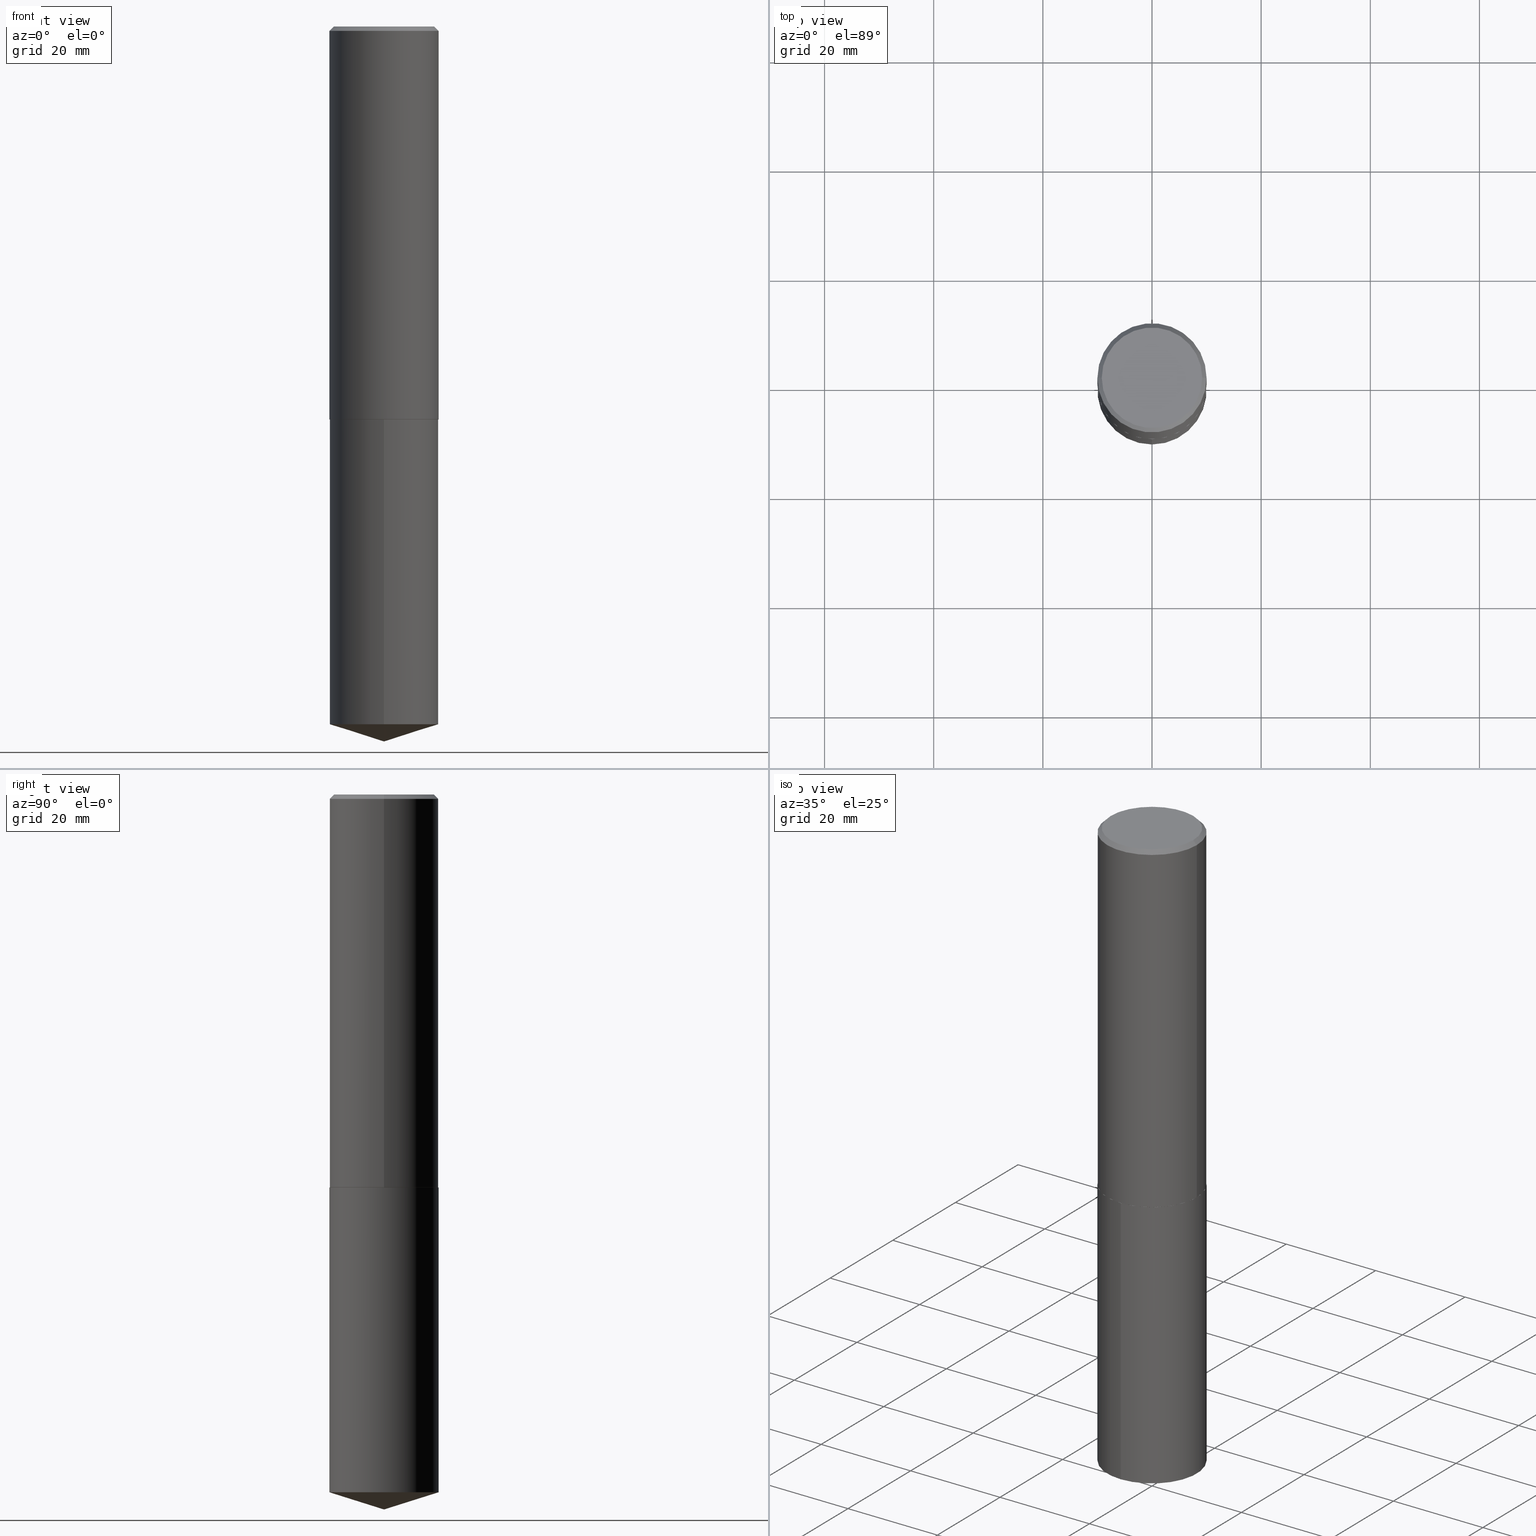
[diagram: canonical four-view strip — front | top / right | iso, engineering-drawing reading convention]
A machine part, canonical four-view strip (front | top / right | iso — engineering-drawing reading convention). The complete STEP part file that produces these views, byte-faithful:
ISO-10303-21;
HEADER;
FILE_DESCRIPTION (( 'STEP AP203' ),
    '1' );
FILE_NAME ('63212.STEP',
    '2024-04-23T10:18:52',
    ( '' ),
    ( '' ),
    'SwSTEP 2.0',
    'SolidWorks 2023',
    '' );
FILE_SCHEMA (( 'CONFIG_CONTROL_DESIGN' ));
ENDSEC;

DATA;
#1 =( LENGTH_UNIT ( ) NAMED_UNIT ( * ) SI_UNIT ( $, .METRE. ) );
#2 = AXIS2_PLACEMENT_3D ( 'NONE', #327, #82, #181 ) ;
#3 = DIRECTION ( 'NONE',  ( -2.446283281185317163E-29, 3.490314964285848959E-15, 1.000000000000000000 ) ) ;
#4 = ADVANCED_FACE ( 'NONE', ( #341 ), #131, .F. ) ;
#5 = LINE ( 'NONE', #126, #113 ) ;
#6 = EDGE_CURVE ( 'NONE', #187, #47, #161, .T. ) ;
#7 = DIRECTION ( 'NONE',  ( 1.000000000000000000, -6.982962677686265922E-15, 4.876176775795935793E-29 ) ) ;
#8 = EDGE_LOOP ( 'NONE', ( #262, #146, #225, #130 ) ) ;
#9 = EDGE_CURVE ( 'NONE', #79, #290, #387, .T. ) ;
#10 = EDGE_CURVE ( 'NONE', #165, #47, #164, .T. ) ;
#11 = ORIENTED_EDGE ( 'NONE', *, *, #57, .T. ) ;
#12 = FACE_OUTER_BOUND ( 'NONE', #66, .T. ) ;
#13 = AXIS2_PLACEMENT_3D ( 'NONE', #336, #166, #94 ) ;
#14 = PERSON_AND_ORGANIZATION ( #109, #363 ) ;
#15 = DIRECTION ( 'NONE',  ( 1.000000000000000000, -6.982962677686265922E-15, 0.000000000000000000 ) ) ;
#16 = COORDINATED_UNIVERSAL_TIME_OFFSET ( 5, 0, .BEHIND. ) ;
#17 = ORIENTED_EDGE ( 'NONE', *, *, #291, .T. ) ;
#18 = DIRECTION ( 'NONE',  ( -2.446283281185317163E-29, 3.490314964285848959E-15, 1.000000000000000000 ) ) ;
#19 = PERSON_AND_ORGANIZATION ( #109, #363 ) ;
#20 = ORIENTED_EDGE ( 'NONE', *, *, #283, .F. ) ;
#21 = LINE ( 'NONE', #230, #51 ) ;
#22 = APPROVAL_PERSON_ORGANIZATION ( #31, #98, #54 ) ;
#23 = ORIENTED_EDGE ( 'NONE', *, *, #173, .T. ) ;
#24 = LINE ( 'NONE', #342, #77 ) ;
#25 = ORIENTED_EDGE ( 'NONE', *, *, #96, .T. ) ;
#26 = CARTESIAN_POINT ( 'NONE',  ( -1.178467787315321927E-46, 1.682539673960461744E-32, 4.818985154644842843E-18 ) ) ;
#27 = PERSON_AND_ORGANIZATION_ROLE ( 'creator' ) ;
#28 = CARTESIAN_POINT ( 'NONE',  ( -2.749192406204959760E-15, -0.3937000000000174804, -5.033366866818345997 ) ) ;
#29 = AXIS2_PLACEMENT_3D ( 'NONE', #360, #206, #322 ) ;
#30 = APPLICATION_PROTOCOL_DEFINITION ( 'international standard', 'config_control_design', 1994, #226 ) ;
#31 = PERSON_AND_ORGANIZATION ( #109, #363 ) ;
#32 =( CONVERSION_BASED_UNIT ( 'INCH', #243 ) LENGTH_UNIT ( ) NAMED_UNIT ( #329 ) );
#33 = CARTESIAN_POINT ( 'NONE',  ( 7.642090019328588649E-31, -1.091087918388488171E-16, -0.03125000000000014572 ) ) ;
#34 = ADVANCED_FACE ( 'NONE', ( #250 ), #41, .F. ) ;
#35 = AXIS2_PLACEMENT_3D ( 'NONE', #274, #305, #215 ) ;
#36 = DIRECTION ( 'NONE',  ( 2.438088387897960049E-29, -3.491481338843145188E-15, -1.000000000000000000 ) ) ;
#37 = ORIENTED_EDGE ( 'NONE', *, *, #384, .T. ) ;
#38 = ADVANCED_FACE ( 'NONE', ( #12 ), #44, .T. ) ;
#39 = DIRECTION ( 'NONE',  ( -2.445468806185136597E-29, 3.491481338843145583E-15, 1.000000000000000000 ) ) ;
#40 = CARTESIAN_POINT ( 'NONE',  ( 0.3937000000000000499, -2.858301198043932317E-15, -0.03125000000000014572 ) ) ;
#41 = PLANE ( 'NONE',  #259 ) ;
#42 = CC_DESIGN_PERSON_AND_ORGANIZATION_ASSIGNMENT ( #14, #212, ( #185 ) ) ;
#43 = CIRCLE ( 'NONE', #213, 0.3937000000000000499 ) ;
#44 = CONICAL_SURFACE ( 'NONE', #269, 0.3937000000000004385, 0.7853981633969702170 ) ;
#45 = DIRECTION ( 'NONE',  ( 0.7071067811865454633, -7.319954787623248157E-15, -0.7071067811865495711 ) ) ;
#46 = ADVANCED_FACE ( 'NONE', ( #275 ), #134, .T. ) ;
#47 = VERTEX_POINT ( 'NONE', #40 ) ;
#48 = CARTESIAN_POINT ( 'NONE',  ( 0.3624500000000000499, -2.648337176426896411E-15, 4.818985154662952747E-18 ) ) ;
#49 = EDGE_LOOP ( 'NONE', ( #71, #370, #193 ) ) ;
#50 = DIRECTION ( 'NONE',  ( -2.446283281185317163E-29, 3.490314964285848959E-15, 1.000000000000000000 ) ) ;
#51 = VECTOR ( 'NONE', #197, 39.37007874015748143 ) ;
#52 = DIRECTION ( 'NONE',  ( -2.445468806185136597E-29, 3.491481338843145583E-15, 1.000000000000000000 ) ) ;
#53 = CARTESIAN_POINT ( 'NONE',  ( 6.930947690489914621E-29, -9.895556410549243682E-15, -2.834200000000000053 ) ) ;
#54 = APPROVAL_ROLE ( '' ) ;
#55 = CARTESIAN_POINT ( 'NONE',  ( 6.932170424893007423E-29, -9.897302151218665974E-15, -2.834700000000000220 ) ) ;
#56 = FACE_OUTER_BOUND ( 'NONE', #317, .T. ) ;
#57 = EDGE_CURVE ( 'NONE', #47, #187, #85, .T. ) ;
#58 = LINE ( 'NONE', #205, #331 ) ;
#59 = AXIS2_PLACEMENT_3D ( 'NONE', #55, #325, #388 ) ;
#60 = CC_DESIGN_SECURITY_CLASSIFICATION ( #90, ( #238 ) ) ;
#61 = DIRECTION ( 'NONE',  ( -2.445468806185136597E-29, 3.491481338843145583E-15, 1.000000000000000000 ) ) ;
#62 = EDGE_LOOP ( 'NONE', ( #220, #320, #249, #338 ) ) ;
#63 = LOCAL_TIME ( 6, 18, 52.00000000000000000, #344 ) ;
#64 = ORIENTED_EDGE ( 'NONE', *, *, #10, .T. ) ;
#65 = PRODUCT_RELATED_PRODUCT_CATEGORY ( 'detail', '', ( #328 ) ) ;
#66 = EDGE_LOOP ( 'NONE', ( #365, #140, #20, #69 ) ) ;
#67 = ORIENTED_EDGE ( 'NONE', *, *, #326, .F. ) ;
#68 =( GEOMETRIC_REPRESENTATION_CONTEXT ( 3 ) GLOBAL_UNCERTAINTY_ASSIGNED_CONTEXT ( ( #303 ) ) GLOBAL_UNIT_ASSIGNED_CONTEXT ( ( #32, #160, #295 ) ) REPRESENTATION_CONTEXT ( 'NONE', 'WORKASPACE' ) );
#69 = ORIENTED_EDGE ( 'NONE', *, *, #123, .F. ) ;
#70 = DIRECTION ( 'NONE',  ( -2.445468806185136597E-29, 3.491481338843145583E-15, 1.000000000000000000 ) ) ;
#71 = ORIENTED_EDGE ( 'NONE', *, *, #208, .F. ) ;
#72 = DIRECTION ( 'NONE',  ( -6.982962677686265133E-15, -1.000000000000000000, 4.163344669033674845E-15 ) ) ;
#73 = CARTESIAN_POINT ( 'NONE',  ( 0.3932000000000007156, -1.264300307608491092E-14, -2.834700000000000220 ) ) ;
#74 = VECTOR ( 'NONE', #3, 39.37007874015748143 ) ;
#75 = AXIS2_PLACEMENT_3D ( 'NONE', #270, #235, #268 ) ;
#76 = VERTEX_POINT ( 'NONE', #139 ) ;
#77 = VECTOR ( 'NONE', #234, 39.37007874015748143 ) ;
#78 = DIRECTION ( 'NONE',  ( -0.7071067811862092878, 7.493145998869131426E-15, 0.7071067811868855246 ) ) ;
#79 = VERTEX_POINT ( 'NONE', #373 ) ;
#80 = ADVANCED_FACE ( 'NONE', ( #101 ), #183, .T. ) ;
#81 = DIRECTION ( 'NONE',  ( -6.982962677686265133E-15, -1.000000000000000000, 4.163344669033674845E-15 ) ) ;
#82 = DIRECTION ( 'NONE',  ( -2.445468806185136597E-29, 3.491481338843145583E-15, 1.000000000000000000 ) ) ;
#83 = AXIS2_PLACEMENT_3D ( 'NONE', #33, #157, #293 ) ;
#84 = DIRECTION ( 'NONE',  ( 6.776566513254263659E-15, 0.9537169507482298192, 0.3007057995042640153 ) ) ;
#85 = CIRCLE ( 'NONE', #177, 0.3937000000000000499 ) ;
#86 = EDGE_CURVE ( 'NONE', #219, #255, #186, .T. ) ;
#87 = DIRECTION ( 'NONE',  ( 1.000000000000000000, 0.000000000000000000, 0.000000000000000000 ) ) ;
#88 = APPROVAL_STATUS ( 'not_yet_approved' ) ;
#89 = CONICAL_SURFACE ( 'NONE', #248, 0.3937000000000004385, 0.7853981633969702170 ) ;
#90 = SECURITY_CLASSIFICATION ( '', '', #372 ) ;
#91 = DATE_AND_TIME ( #301, #120 ) ;
#92 = CARTESIAN_POINT ( 'NONE',  ( -5.892338936576609633E-47, 8.412698369802308719E-33, 2.409492577322421421E-18 ) ) ;
#93 = CARTESIAN_POINT ( 'NONE',  ( 6.932170424893007423E-29, -9.897302151218665974E-15, -2.834700000000000220 ) ) ;
#94 = DIRECTION ( 'NONE',  ( -6.982962677686265922E-15, -1.000000000000000000, 3.500519750498663806E-15 ) ) ;
#95 = VECTOR ( 'NONE', #143, 39.37007874015748854 ) ;
#96 = EDGE_CURVE ( 'NONE', #247, #47, #176, .T. ) ;
#97 = EDGE_CURVE ( 'NONE', #79, #219, #21, .T. ) ;
#98 = APPROVAL ( #294, 'UNSPECIFIED' ) ;
#99 = VERTEX_POINT ( 'NONE', #102 ) ;
#100 = ADVANCED_BREP_SHAPE_REPRESENTATION ( '63212', ( #378, #254, #306 ), #68 ) ;
#101 = FACE_OUTER_BOUND ( 'NONE', #49, .T. ) ;
#102 = CARTESIAN_POINT ( 'NONE',  ( 1.261670602271327219E-28, -1.800129942830426476E-14, -5.157499999999999751 ) ) ;
#103 = LOCAL_TIME ( 6, 18, 52.00000000000000000, #16 ) ;
#104 = ORIENTED_EDGE ( 'NONE', *, *, #6, .T. ) ;
#105 = CARTESIAN_POINT ( 'NONE',  ( 0.3937000000000004385, -1.264474881675433005E-14, -2.834200000000000053 ) ) ;
#106 = APPROVAL_STATUS ( 'not_yet_approved' ) ;
#107 = DIRECTION ( 'NONE',  ( -2.445468806185136597E-29, 3.491481338843145583E-15, 1.000000000000000000 ) ) ;
#108 = CALENDAR_DATE ( 2024, 23, 4 ) ;
#109 = PERSON ( 'UNSPECIFIED', 'UNSPECIFIED', 'UNSPECIFIED', ('UNSPECIFIED'), ('UNSPECIFIED'), ('UNSPECIFIED') ) ;
#110 = CARTESIAN_POINT ( 'NONE',  ( 0.3937000000000000499, -2.810086853561501142E-15, -0.03125000000000014572 ) ) ;
#111 = ADVANCED_FACE ( 'NONE', ( #178 ), #89, .T. ) ;
#112 = EDGE_CURVE ( 'NONE', #76, #187, #203, .T. ) ;
#113 = VECTOR ( 'NONE', #207, 39.37007874015748143 ) ;
#114 = APPROVAL ( #88, 'UNSPECIFIED' ) ;
#115 = CC_DESIGN_APPROVAL ( #98, ( #90 ) ) ;
#116 = ORIENTED_EDGE ( 'NONE', *, *, #318, .F. ) ;
#117 = AXIS2_PLACEMENT_3D ( 'NONE', #129, #278, #335 ) ;
#118 = CARTESIAN_POINT ( 'NONE',  ( -2.749192406205013402E-15, -0.3937000000000099309, -2.834699999999998443 ) ) ;
#119 = CARTESIAN_POINT ( 'NONE',  ( 6.932170424893007423E-29, -9.897302151218665974E-15, -2.834700000000000220 ) ) ;
#120 = LOCAL_TIME ( 6, 18, 52.00000000000000000, #364 ) ;
#121 = DIRECTION ( 'NONE',  ( 2.446283281185316883E-29, -3.490314964285848959E-15, -1.000000000000000000 ) ) ;
#122 = AXIS2_PLACEMENT_3D ( 'NONE', #92, #36, #245 ) ;
#123 = EDGE_CURVE ( 'NONE', #257, #165, #147, .T. ) ;
#124 = CARTESIAN_POINT ( 'NONE',  ( 0.000000000000000000, 0.000000000000000000, 0.000000000000000000 ) ) ;
#125 = DESIGN_CONTEXT ( 'detailed design', #226, 'design' ) ;
#126 = CARTESIAN_POINT ( 'NONE',  ( -0.3937000000000000499, 2.640083614366234510E-15, -0.03125000000000014572 ) ) ;
#127 = CC_DESIGN_PERSON_AND_ORGANIZATION_ASSIGNMENT ( #314, #150, ( #238 ) ) ;
#128 = CIRCLE ( 'NONE', #29, 0.3932000000000007156 ) ;
#129 = CARTESIAN_POINT ( 'NONE',  ( 0.000000000000000000, 0.000000000000000000, 0.000000000000000000 ) ) ;
#130 = ORIENTED_EDGE ( 'NONE', *, *, #291, .F. ) ;
#131 = PLANE ( 'NONE',  #122 ) ;
#132 = APPROVAL_ROLE ( '' ) ;
#133 = ADVANCED_FACE ( 'NONE', ( #199 ), #263, .T. ) ;
#134 = CYLINDRICAL_SURFACE ( 'NONE', #117, 0.3937000000000002164 ) ;
#135 = VECTOR ( 'NONE', #366, 39.37007874015748143 ) ;
#136 = CIRCLE ( 'NONE', #2, 0.3937000000000004385 ) ;
#137 = AXIS2_PLACEMENT_3D ( 'NONE', #354, #18, #289 ) ;
#138 = PERSON_AND_ORGANIZATION ( #109, #363 ) ;
#139 = CARTESIAN_POINT ( 'NONE',  ( -0.3937000000000004385, -7.098149659861725740E-15, -2.834200000000000053 ) ) ;
#140 = ORIENTED_EDGE ( 'NONE', *, *, #190, .T. ) ;
#141 = CARTESIAN_POINT ( 'NONE',  ( 2.797406750687637454E-15, 0.3936999999999901134, -2.834700000000001996 ) ) ;
#142 = EDGE_LOOP ( 'NONE', ( #376, #188, #309, #382 ) ) ;
#143 = DIRECTION ( 'NONE',  ( 0.7071067811862092878, -2.468850131078715470E-15, 0.7071067811868855246 ) ) ;
#144 = CC_DESIGN_APPROVAL ( #222, ( #238 ) ) ;
#145 = CIRCLE ( 'NONE', #358, 0.3937000000000004385 ) ;
#146 = ORIENTED_EDGE ( 'NONE', *, *, #97, .T. ) ;
#147 = LINE ( 'NONE', #380, #95 ) ;
#148 = ORIENTED_EDGE ( 'NONE', *, *, #276, .T. ) ;
#149 = DIRECTION ( 'NONE',  ( -2.445468806185136597E-29, 3.491481338843145583E-15, 1.000000000000000000 ) ) ;
#150 = PERSON_AND_ORGANIZATION_ROLE ( 'design_supplier' ) ;
#151 = ORIENTED_EDGE ( 'NONE', *, *, #318, .T. ) ;
#152 = LINE ( 'NONE', #118, #74 ) ;
#153 = APPROVAL_PERSON_ORGANIZATION ( #138, #114, #132 ) ;
#154 = CONICAL_SURFACE ( 'NONE', #75, 124.8659371009165113, 1.265363707695895013 ) ;
#155 = EDGE_LOOP ( 'NONE', ( #216, #374, #151, #104 ) ) ;
#156 = DATE_AND_TIME ( #266, #194 ) ;
#157 = DIRECTION ( 'NONE',  ( 2.445468806185136597E-29, -3.491481338843145583E-15, -1.000000000000000000 ) ) ;
#158 = FACE_OUTER_BOUND ( 'NONE', #233, .T. ) ;
#159 = AXIS2_PLACEMENT_3D ( 'NONE', #343, #345, #172 ) ;
#160 =( NAMED_UNIT ( * ) PLANE_ANGLE_UNIT ( ) SI_UNIT ( $, .RADIAN. ) );
#161 = CIRCLE ( 'NONE', #279, 0.3937000000000000499 ) ;
#162 = PERSON_AND_ORGANIZATION ( #109, #363 ) ;
#163 = CC_DESIGN_PERSON_AND_ORGANIZATION_ASSIGNMENT ( #200, #27, ( #238 ) ) ;
#164 = LINE ( 'NONE', #272, #135 ) ;
#165 = VERTEX_POINT ( 'NONE', #105 ) ;
#166 = DIRECTION ( 'NONE',  ( -2.446283281185317163E-29, 3.490314964285848959E-15, 1.000000000000000000 ) ) ;
#167 = EDGE_CURVE ( 'NONE', #247, #223, #170, .T. ) ;
#168 = EDGE_LOOP ( 'NONE', ( #371, #348, #17, #298 ) ) ;
#169 = DIRECTION ( 'NONE',  ( -2.438088387897960049E-29, 3.491481338843145188E-15, 1.000000000000000000 ) ) ;
#170 = CIRCLE ( 'NONE', #299, 0.3624500000000000499 ) ;
#171 = ORIENTED_EDGE ( 'NONE', *, *, #6, .F. ) ;
#172 = DIRECTION ( 'NONE',  ( -1.000000000000000000, 6.982962677686265922E-15, 0.000000000000000000 ) ) ;
#173 = EDGE_CURVE ( 'NONE', #255, #219, #352, .T. ) ;
#174 = APPROVAL_DATE_TIME ( #308, #222 ) ;
#175 = DIRECTION ( 'NONE',  ( -2.445468806185136597E-29, 3.491481338843145583E-15, 1.000000000000000000 ) ) ;
#176 = LINE ( 'NONE', #110, #217 ) ;
#177 = AXIS2_PLACEMENT_3D ( 'NONE', #367, #61, #15 ) ;
#178 = FACE_OUTER_BOUND ( 'NONE', #62, .T. ) ;
#179 = DIRECTION ( 'NONE',  ( 1.000000000000000000, -6.982962677686266711E-15, 4.876176775795935793E-29 ) ) ;
#180 = CYLINDRICAL_SURFACE ( 'NONE', #189, 0.3937000000000000499 ) ;
#181 = DIRECTION ( 'NONE',  ( 1.000000000000000000, -6.982962677686265922E-15, 0.000000000000000000 ) ) ;
#182 = CARTESIAN_POINT ( 'NONE',  ( 6.932170424893007423E-29, -9.897302151218665974E-15, -2.834700000000000220 ) ) ;
#183 = CONICAL_SURFACE ( 'NONE', #13, 124.8659371009165113, 1.265363707695895013 ) ;
#184 = APPROVAL_PERSON_ORGANIZATION ( #379, #222, #228 ) ;
#185 = PRODUCT_DEFINITION ( 'UNKNOWN', '', #238, #125 ) ;
#186 = CIRCLE ( 'NONE', #231, 0.3937000000000000499 ) ;
#187 = VERTEX_POINT ( 'NONE', #227 ) ;
#188 = ORIENTED_EDGE ( 'NONE', *, *, #112, .T. ) ;
#189 = AXIS2_PLACEMENT_3D ( 'NONE', #119, #362, #355 ) ;
#190 = EDGE_CURVE ( 'NONE', #198, #76, #313, .T. ) ;
#191 = CARTESIAN_POINT ( 'NONE',  ( 6.932170424893007423E-29, -9.897302151218665974E-15, -2.834700000000000220 ) ) ;
#192 = CARTESIAN_POINT ( 'NONE',  ( 7.642090019328588649E-31, -1.091087918388488171E-16, -0.03125000000000014572 ) ) ;
#193 = ORIENTED_EDGE ( 'NONE', *, *, #221, .F. ) ;
#194 = LOCAL_TIME ( 6, 18, 52.00000000000000000, #242 ) ;
#195 = DATE_TIME_ROLE ( 'creation_date' ) ;
#196 = ORIENTED_EDGE ( 'NONE', *, *, #389, .F. ) ;
#197 = DIRECTION ( 'NONE',  ( -2.446283281185317163E-29, 3.490314964285848959E-15, 1.000000000000000000 ) ) ;
#198 = VERTEX_POINT ( 'NONE', #383 ) ;
#199 = FACE_OUTER_BOUND ( 'NONE', #168, .T. ) ;
#200 = PERSON_AND_ORGANIZATION ( #109, #363 ) ;
#201 = CARTESIAN_POINT ( 'NONE',  ( -1.178467787315321927E-46, 1.682539673960461744E-32, 4.818985154644842843E-18 ) ) ;
#202 = ORIENTED_EDGE ( 'NONE', *, *, #167, .F. ) ;
#203 = LINE ( 'NONE', #350, #251 ) ;
#204 = EDGE_LOOP ( 'NONE', ( #312, #37, #64, #171 ) ) ;
#205 = CARTESIAN_POINT ( 'NONE',  ( 1.261674651347929420E-28, -1.800129942830426476E-14, -5.157499999999999751 ) ) ;
#206 = DIRECTION ( 'NONE',  ( -2.445468806185136597E-29, 3.491481338843145583E-15, 1.000000000000000000 ) ) ;
#207 = DIRECTION ( 'NONE',  ( -0.7071067811865454633, 2.468850131082235367E-15, -0.7071067811865495711 ) ) ;
#208 = EDGE_CURVE ( 'NONE', #99, #290, #24, .T. ) ;
#209 = APPLICATION_PROTOCOL_DEFINITION ( 'international standard', 'config_control_design', 1994, #356 ) ;
#210 = AXIS2_PLACEMENT_3D ( 'NONE', #182, #121, #390 ) ;
#211 = CONICAL_SURFACE ( 'NONE', #83, 0.3937000000000000499, 0.7853981633974453924 ) ;
#212 = PERSON_AND_ORGANIZATION_ROLE ( 'creator' ) ;
#213 = AXIS2_PLACEMENT_3D ( 'NONE', #319, #50, #256 ) ;
#214 = DIRECTION ( 'NONE',  ( -2.445468806185136597E-29, 3.491481338843145583E-15, 1.000000000000000000 ) ) ;
#215 = DIRECTION ( 'NONE',  ( -6.982962677686265133E-15, -1.000000000000000000, 2.775563112689116301E-15 ) ) ;
#216 = ORIENTED_EDGE ( 'NONE', *, *, #96, .F. ) ;
#217 = VECTOR ( 'NONE', #45, 39.37007874015748143 ) ;
#218 = APPROVAL_DATE_TIME ( #91, #114 ) ;
#219 = VERTEX_POINT ( 'NONE', #141 ) ;
#220 = ORIENTED_EDGE ( 'NONE', *, *, #190, .F. ) ;
#221 = EDGE_CURVE ( 'NONE', #290, #79, #43, .T. ) ;
#222 = APPROVAL ( #106, 'UNSPECIFIED' ) ;
#223 = VERTEX_POINT ( 'NONE', #375 ) ;
#224 = DIRECTION ( 'NONE',  ( -2.446283281185317163E-29, 3.490314964285848959E-15, 1.000000000000000000 ) ) ;
#225 = ORIENTED_EDGE ( 'NONE', *, *, #173, .F. ) ;
#226 = APPLICATION_CONTEXT ( 'configuration controlled 3d designs of mechanical parts and assemblies' ) ;
#227 = CARTESIAN_POINT ( 'NONE',  ( -0.3937000000000000499, -2.204925850506529633E-15, -0.03125000000000014572 ) ) ;
#228 = APPROVAL_ROLE ( '' ) ;
#229 = FACE_OUTER_BOUND ( 'NONE', #155, .T. ) ;
#230 = CARTESIAN_POINT ( 'NONE',  ( 2.797406750687583417E-15, 0.3936999999999901134, -2.834700000000001996 ) ) ;
#231 = AXIS2_PLACEMENT_3D ( 'NONE', #191, #304, #72 ) ;
#232 = AXIS2_PLACEMENT_3D ( 'NONE', #201, #175, #316 ) ;
#233 = EDGE_LOOP ( 'NONE', ( #23, #285 ) ) ;
#234 = DIRECTION ( 'NONE',  ( -6.659769872151638399E-15, -0.9537169507482275987, 0.3007057995042706766 ) ) ;
#235 = DIRECTION ( 'NONE',  ( -2.446283281185317163E-29, 3.490314964285848959E-15, 1.000000000000000000 ) ) ;
#236 = DATE_TIME_ROLE ( 'classification_date' ) ;
#237 = PLANE ( 'NONE',  #210 ) ;
#238 = PRODUCT_DEFINITION_FORMATION_WITH_SPECIFIED_SOURCE ( 'ANY', '', #328, .NOT_KNOWN. ) ;
#239 = CONICAL_SURFACE ( 'NONE', #159, 0.3937000000000000499, 0.7853981633974453924 ) ;
#240 = FACE_OUTER_BOUND ( 'NONE', #281, .T. ) ;
#241 = ADVANCED_FACE ( 'NONE', ( #310 ), #287, .T. ) ;
#242 = COORDINATED_UNIVERSAL_TIME_OFFSET ( 5, 0, .BEHIND. ) ;
#243 = LENGTH_MEASURE_WITH_UNIT ( LENGTH_MEASURE( 0.02539999999999999897 ), #1 );
#244 = ADVANCED_FACE ( 'NONE', ( #229 ), #239, .T. ) ;
#245 = DIRECTION ( 'NONE',  ( -1.000000000000000000, 6.982962677686265922E-15, -4.876176775795935793E-29 ) ) ;
#246 = EDGE_LOOP ( 'NONE', ( #196, #273 ) ) ;
#247 = VERTEX_POINT ( 'NONE', #48 ) ;
#248 = AXIS2_PLACEMENT_3D ( 'NONE', #265, #149, #258 ) ;
#249 = ORIENTED_EDGE ( 'NONE', *, *, #123, .T. ) ;
#250 = FACE_OUTER_BOUND ( 'NONE', #246, .T. ) ;
#251 = VECTOR ( 'NONE', #286, 39.37007874015748143 ) ;
#252 = CC_DESIGN_PERSON_AND_ORGANIZATION_ASSIGNMENT ( #162, #271, ( #328 ) ) ;
#253 = DIRECTION ( 'NONE',  ( 1.000000000000000000, -6.982962677686265922E-15, 0.000000000000000000 ) ) ;
#254 = MANIFOLD_SOLID_BREP ( 'Body-Move/Copy2[2]', #337 ) ;
#255 = VERTEX_POINT ( 'NONE', #292 ) ;
#256 = DIRECTION ( 'NONE',  ( -6.982962677686265133E-15, -1.000000000000000000, 2.775563112689116301E-15 ) ) ;
#257 = VERTEX_POINT ( 'NONE', #73 ) ;
#258 = DIRECTION ( 'NONE',  ( 1.000000000000000000, -6.982962677686265922E-15, 0.000000000000000000 ) ) ;
#259 = AXIS2_PLACEMENT_3D ( 'NONE', #93, #169, #7 ) ;
#260 = ORIENTED_EDGE ( 'NONE', *, *, #9, .F. ) ;
#261 = CARTESIAN_POINT ( 'NONE',  ( -0.3937000000000004385, -7.098149659861725740E-15, -2.834200000000000053 ) ) ;
#262 = ORIENTED_EDGE ( 'NONE', *, *, #221, .T. ) ;
#263 = CYLINDRICAL_SURFACE ( 'NONE', #137, 0.3937000000000000499 ) ;
#264 = ORIENTED_EDGE ( 'NONE', *, *, #208, .T. ) ;
#265 = CARTESIAN_POINT ( 'NONE',  ( 6.930947690489914621E-29, -9.895556410549243682E-15, -2.834200000000000053 ) ) ;
#266 = CALENDAR_DATE ( 2024, 23, 4 ) ;
#267 = DIRECTION ( 'NONE',  ( 0.000000000000000000, 0.000000000000000000, 1.000000000000000000 ) ) ;
#268 = DIRECTION ( 'NONE',  ( -6.982962677686265922E-15, -1.000000000000000000, 3.500519750498663806E-15 ) ) ;
#269 = AXIS2_PLACEMENT_3D ( 'NONE', #300, #214, #253 ) ;
#270 = CARTESIAN_POINT ( 'NONE',  ( -8.369596817056648487E-28, 1.194093692216219762E-13, 34.21257874015748257 ) ) ;
#271 = PERSON_AND_ORGANIZATION_ROLE ( 'design_owner' ) ;
#272 = CARTESIAN_POINT ( 'NONE',  ( 0.3937000000000002164, -2.749192406205084794E-15, 1.919750796630861012E-29 ) ) ;
#273 = ORIENTED_EDGE ( 'NONE', *, *, #311, .F. ) ;
#274 = CARTESIAN_POINT ( 'NONE',  ( 1.231073242208683257E-28, -1.757134201795422108E-14, -5.033366866818346885 ) ) ;
#275 = FACE_OUTER_BOUND ( 'NONE', #142, .T. ) ;
#276 = EDGE_CURVE ( 'NONE', #223, #247, #368, .T. ) ;
#277 = AXIS2_PLACEMENT_3D ( 'NONE', #307, #107, #179 ) ;
#278 = DIRECTION ( 'NONE',  ( -2.445468806185136597E-29, 3.491481338843145583E-15, 1.000000000000000000 ) ) ;
#279 = AXIS2_PLACEMENT_3D ( 'NONE', #192, #39, #340 ) ;
#280 = PERSON_AND_ORGANIZATION_ROLE ( 'classification_officer' ) ;
#281 = EDGE_LOOP ( 'NONE', ( #202, #25, #11, #116 ) ) ;
#282 = CARTESIAN_POINT ( 'NONE',  ( 6.932170424893007423E-29, -9.897302151218665974E-15, -2.834700000000000220 ) ) ;
#283 = EDGE_CURVE ( 'NONE', #165, #76, #145, .T. ) ;
#284 = CALENDAR_DATE ( 2024, 23, 4 ) ;
#285 = ORIENTED_EDGE ( 'NONE', *, *, #86, .T. ) ;
#286 = DIRECTION ( 'NONE',  ( -2.445468806185136877E-29, 3.491481338843145188E-15, 1.000000000000000000 ) ) ;
#287 = CYLINDRICAL_SURFACE ( 'NONE', #277, 0.3937000000000002164 ) ;
#288 = CLOSED_SHELL ( 'NONE', ( #302, #80, #381, #133, #346 ) ) ;
#289 = DIRECTION ( 'NONE',  ( -6.982962677686265133E-15, -1.000000000000000000, 4.163344669033674845E-15 ) ) ;
#290 = VERTEX_POINT ( 'NONE', #28 ) ;
#291 = EDGE_CURVE ( 'NONE', #290, #255, #152, .T. ) ;
#292 = CARTESIAN_POINT ( 'NONE',  ( -2.749192406205013402E-15, -0.3937000000000099309, -2.834699999999998443 ) ) ;
#293 = DIRECTION ( 'NONE',  ( -1.000000000000000000, 6.982962677686265922E-15, 0.000000000000000000 ) ) ;
#294 = APPROVAL_STATUS ( 'not_yet_approved' ) ;
#295 =( NAMED_UNIT ( * ) SI_UNIT ( $, .STERADIAN. ) SOLID_ANGLE_UNIT ( ) );
#296 = DATE_AND_TIME ( #284, #103 ) ;
#297 = CALENDAR_DATE ( 2024, 23, 4 ) ;
#298 = ORIENTED_EDGE ( 'NONE', *, *, #86, .F. ) ;
#299 = AXIS2_PLACEMENT_3D ( 'NONE', #26, #70, #377 ) ;
#300 = CARTESIAN_POINT ( 'NONE',  ( 6.930947690489914621E-29, -9.895556410549243682E-15, -2.834200000000000053 ) ) ;
#301 = CALENDAR_DATE ( 2024, 23, 4 ) ;
#302 = ADVANCED_FACE ( 'NONE', ( #357 ), #180, .T. ) ;
#303 = UNCERTAINTY_MEASURE_WITH_UNIT (LENGTH_MEASURE( 1.000000000000000082E-05 ), #32, 'distance_accuracy_value', 'NONE');
#304 = DIRECTION ( 'NONE',  ( -2.446283281185317163E-29, 3.490314964285848959E-15, 1.000000000000000000 ) ) ;
#305 = DIRECTION ( 'NONE',  ( -2.446283281185317163E-29, 3.490314964285848959E-15, 1.000000000000000000 ) ) ;
#306 = AXIS2_PLACEMENT_3D ( 'NONE', #124, #267, #87 ) ;
#307 = CARTESIAN_POINT ( 'NONE',  ( 0.000000000000000000, 0.000000000000000000, 0.000000000000000000 ) ) ;
#308 = DATE_AND_TIME ( #108, #63 ) ;
#309 = ORIENTED_EDGE ( 'NONE', *, *, #57, .F. ) ;
#310 = FACE_OUTER_BOUND ( 'NONE', #204, .T. ) ;
#311 = EDGE_CURVE ( 'NONE', #198, #257, #349, .T. ) ;
#312 = ORIENTED_EDGE ( 'NONE', *, *, #112, .F. ) ;
#313 = LINE ( 'NONE', #261, #315 ) ;
#314 = PERSON_AND_ORGANIZATION ( #109, #363 ) ;
#315 = VECTOR ( 'NONE', #78, 39.37007874015748854 ) ;
#316 = DIRECTION ( 'NONE',  ( 1.000000000000000000, -6.982962677686266711E-15, 4.876156645145296500E-29 ) ) ;
#317 = EDGE_LOOP ( 'NONE', ( #67, #264, #260 ) ) ;
#318 = EDGE_CURVE ( 'NONE', #223, #187, #5, .T. ) ;
#319 = CARTESIAN_POINT ( 'NONE',  ( 1.231073242208683257E-28, -1.757134201795422108E-14, -5.033366866818346885 ) ) ;
#320 = ORIENTED_EDGE ( 'NONE', *, *, #311, .T. ) ;
#321 = SHAPE_DEFINITION_REPRESENTATION ( #359, #100 ) ;
#322 = DIRECTION ( 'NONE',  ( 1.000000000000000000, -6.982962677686266711E-15, 0.000000000000000000 ) ) ;
#323 = CC_DESIGN_APPROVAL ( #114, ( #185 ) ) ;
#324 = APPROVAL_DATE_TIME ( #156, #98 ) ;
#325 = DIRECTION ( 'NONE',  ( -2.445468806185136597E-29, 3.491481338843145583E-15, 1.000000000000000000 ) ) ;
#326 = EDGE_CURVE ( 'NONE', #99, #79, #58, .T. ) ;
#327 = CARTESIAN_POINT ( 'NONE',  ( 6.930947690489914621E-29, -9.895556410549243682E-15, -2.834200000000000053 ) ) ;
#328 = PRODUCT ( '63212', '63212', '', ( #330 ) ) ;
#329 = DIMENSIONAL_EXPONENTS ( 1.000000000000000000, 0.000000000000000000, 0.000000000000000000, 0.000000000000000000, 0.000000000000000000, 0.000000000000000000, 0.000000000000000000 ) ;
#330 = MECHANICAL_CONTEXT ( 'NONE', #356, 'mechanical' ) ;
#331 = VECTOR ( 'NONE', #84, 39.37007874015748854 ) ;
#332 = COORDINATED_UNIVERSAL_TIME_OFFSET ( 5, 0, .BEHIND. ) ;
#333 = CC_DESIGN_PERSON_AND_ORGANIZATION_ASSIGNMENT ( #19, #280, ( #90 ) ) ;
#334 = DATE_AND_TIME ( #297, #351 ) ;
#335 = DIRECTION ( 'NONE',  ( 1.000000000000000000, -6.982962677686266711E-15, 4.876176775795935793E-29 ) ) ;
#336 = CARTESIAN_POINT ( 'NONE',  ( -8.369596817056648487E-28, 1.194093692216219762E-13, 34.21257874015748257 ) ) ;
#337 = CLOSED_SHELL ( 'NONE', ( #339, #46, #38, #34, #111, #241, #244, #4 ) ) ;
#338 = ORIENTED_EDGE ( 'NONE', *, *, #384, .F. ) ;
#339 = ADVANCED_FACE ( 'NONE', ( #240 ), #211, .T. ) ;
#340 = DIRECTION ( 'NONE',  ( 1.000000000000000000, -6.982962677686265922E-15, 0.000000000000000000 ) ) ;
#341 = FACE_OUTER_BOUND ( 'NONE', #353, .T. ) ;
#342 = CARTESIAN_POINT ( 'NONE',  ( 1.261208843814724904E-28, -1.800791207221940257E-14, -5.157499999999999751 ) ) ;
#343 = CARTESIAN_POINT ( 'NONE',  ( 7.642090019328588649E-31, -1.091087918388488171E-16, -0.03125000000000014572 ) ) ;
#344 = COORDINATED_UNIVERSAL_TIME_OFFSET ( 5, 0, .BEHIND. ) ;
#345 = DIRECTION ( 'NONE',  ( 2.445468806185136597E-29, -3.491481338843145583E-15, -1.000000000000000000 ) ) ;
#346 = ADVANCED_FACE ( 'NONE', ( #158 ), #237, .F. ) ;
#347 = CC_DESIGN_DATE_AND_TIME_ASSIGNMENT ( #296, #236, ( #90 ) ) ;
#348 = ORIENTED_EDGE ( 'NONE', *, *, #9, .T. ) ;
#349 = CIRCLE ( 'NONE', #59, 0.3932000000000007156 ) ;
#350 = CARTESIAN_POINT ( 'NONE',  ( -0.3937000000000002164, 2.797406750687515970E-15, -1.936584745033357576E-29 ) ) ;
#351 = LOCAL_TIME ( 6, 18, 52.00000000000000000, #332 ) ;
#352 = CIRCLE ( 'NONE', #369, 0.3937000000000000499 ) ;
#353 = EDGE_LOOP ( 'NONE', ( #148, #385 ) ) ;
#354 = CARTESIAN_POINT ( 'NONE',  ( 6.932170424893007423E-29, -9.897302151218665974E-15, -2.834700000000000220 ) ) ;
#355 = DIRECTION ( 'NONE',  ( -6.982962677686265133E-15, -1.000000000000000000, 4.163344669033674845E-15 ) ) ;
#356 = APPLICATION_CONTEXT ( 'configuration controlled 3d designs of mechanical parts and assemblies' ) ;
#357 = FACE_OUTER_BOUND ( 'NONE', #8, .T. ) ;
#358 = AXIS2_PLACEMENT_3D ( 'NONE', #53, #52, #386 ) ;
#359 = PRODUCT_DEFINITION_SHAPE ( 'NONE', 'NONE',  #185 ) ;
#360 = CARTESIAN_POINT ( 'NONE',  ( 6.932170424893007423E-29, -9.897302151218665974E-15, -2.834700000000000220 ) ) ;
#361 = CC_DESIGN_DATE_AND_TIME_ASSIGNMENT ( #334, #195, ( #185 ) ) ;
#362 = DIRECTION ( 'NONE',  ( -2.446283281185317163E-29, 3.490314964285848959E-15, 1.000000000000000000 ) ) ;
#363 = ORGANIZATION ( 'UNSPECIFIED', 'UNSPECIFIED', '' ) ;
#364 = COORDINATED_UNIVERSAL_TIME_OFFSET ( 5, 0, .BEHIND. ) ;
#365 = ORIENTED_EDGE ( 'NONE', *, *, #389, .T. ) ;
#366 = DIRECTION ( 'NONE',  ( -2.445468806185136877E-29, 3.491481338843145188E-15, 1.000000000000000000 ) ) ;
#367 = CARTESIAN_POINT ( 'NONE',  ( 7.642090019328588649E-31, -1.091087918388488171E-16, -0.03125000000000014572 ) ) ;
#368 = CIRCLE ( 'NONE', #232, 0.3624500000000000499 ) ;
#369 = AXIS2_PLACEMENT_3D ( 'NONE', #282, #224, #81 ) ;
#370 = ORIENTED_EDGE ( 'NONE', *, *, #326, .T. ) ;
#371 = ORIENTED_EDGE ( 'NONE', *, *, #97, .F. ) ;
#372 = SECURITY_CLASSIFICATION_LEVEL ( 'unclassified' ) ;
#373 = CARTESIAN_POINT ( 'NONE',  ( 2.797406750687637060E-15, 0.3936999999999823974, -5.033366866818347773 ) ) ;
#374 = ORIENTED_EDGE ( 'NONE', *, *, #276, .F. ) ;
#375 = CARTESIAN_POINT ( 'NONE',  ( -0.3624500000000000499, 2.585529218446811143E-15, 4.818985154626951724E-18 ) ) ;
#376 = ORIENTED_EDGE ( 'NONE', *, *, #283, .T. ) ;
#377 = DIRECTION ( 'NONE',  ( 1.000000000000000000, -6.982962677686266711E-15, 4.876156645145296500E-29 ) ) ;
#378 = MANIFOLD_SOLID_BREP ( 'Body-Move/Copy2[1]', #288 ) ;
#379 = PERSON_AND_ORGANIZATION ( #109, #363 ) ;
#380 = CARTESIAN_POINT ( 'NONE',  ( 0.3937000000000004385, -1.264474881675433005E-14, -2.834200000000000053 ) ) ;
#381 = ADVANCED_FACE ( 'NONE', ( #56 ), #154, .T. ) ;
#382 = ORIENTED_EDGE ( 'NONE', *, *, #10, .F. ) ;
#383 = CARTESIAN_POINT ( 'NONE',  ( -0.3932000000000007156, -7.100798887035836152E-15, -2.834700000000000220 ) ) ;
#384 = EDGE_CURVE ( 'NONE', #76, #165, #136, .T. ) ;
#385 = ORIENTED_EDGE ( 'NONE', *, *, #167, .T. ) ;
#386 = DIRECTION ( 'NONE',  ( 1.000000000000000000, -6.982962677686265922E-15, 0.000000000000000000 ) ) ;
#387 = CIRCLE ( 'NONE', #35, 0.3937000000000000499 ) ;
#388 = DIRECTION ( 'NONE',  ( 1.000000000000000000, -6.982962677686266711E-15, 0.000000000000000000 ) ) ;
#389 = EDGE_CURVE ( 'NONE', #257, #198, #128, .T. ) ;
#390 = DIRECTION ( 'NONE',  ( 6.982962677686265922E-15, 1.000000000000000000, -3.490314964285848959E-15 ) ) ;
ENDSEC;
END-ISO-10303-21;
